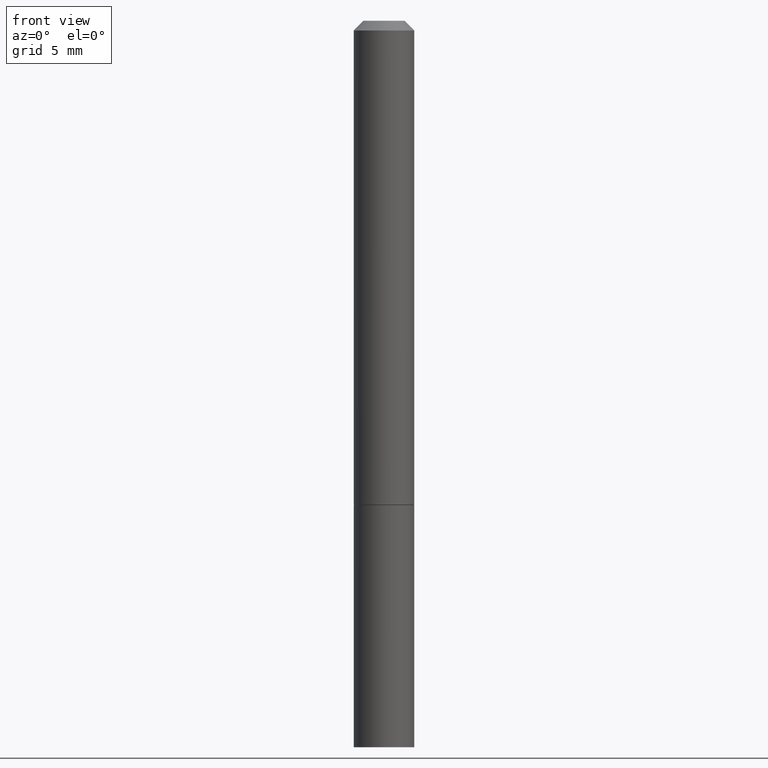
[diagram: clean part render]
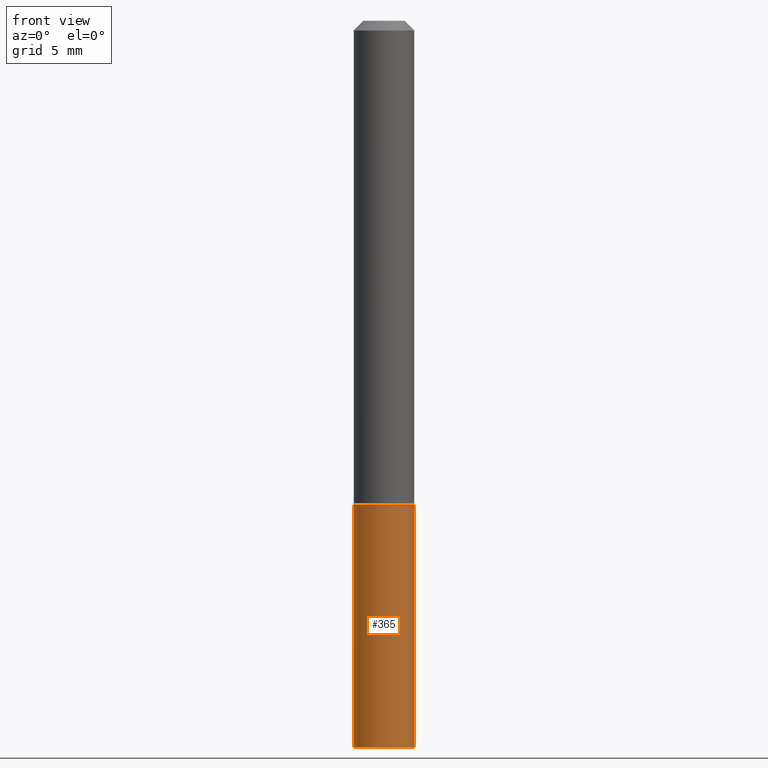
[diagram: same view with one face highlighted and labeled with its STEP entity id]
A machine part, front view. The second image highlights one B-rep face of the part: STEP entity #365.
In plain terms, the highlighted cylindrical surface (edge-blend (fillet) strip) has radius 1.5875 mm, axis along (-0, 0, 1).
Its self-contained STEP definition (entity closure, byte-faithful):
#9 = EDGE_CURVE ( 'NONE', #36, #324, #16, .T. ) ;
#13 = CARTESIAN_POINT ( 'NONE',  ( 0.06250000000000000000, -4.364351673553916694E-16, 3.047610484872459871E-30 ) ) ;
#16 = LINE ( 'NONE', #13, #184 ) ;
#17 = CARTESIAN_POINT ( 'NONE',  ( -0.06250000000000000000, -3.920262463703869855E-15, -1.000000000000000222 ) ) ;
#26 = CYLINDRICAL_SURFACE ( 'NONE', #161, 0.06250000000000000000 ) ;
#36 = VERTEX_POINT ( 'NONE', #112 ) ;
#45 = ORIENTED_EDGE ( 'NONE', *, *, #131, .F. ) ;
#46 = LINE ( 'NONE', #111, #212 ) ;
#47 = ORIENTED_EDGE ( 'NONE', *, *, #9, .T. ) ;
#69 = ORIENTED_EDGE ( 'NONE', *, *, #118, .T. ) ;
#86 = EDGE_CURVE ( 'NONE', #226, #324, #288, .T. ) ;
#107 = DIRECTION ( 'NONE',  ( 1.000000000000000000, -6.982962677686262766E-15, 0.000000000000000000 ) ) ;
#108 = EDGE_LOOP ( 'NONE', ( #45, #69, #47, #343 ) ) ;
#111 = CARTESIAN_POINT ( 'NONE',  ( -0.06250000000000000000, 4.440892098500626162E-16, -3.074334431409316114E-30 ) ) ;
#112 = CARTESIAN_POINT ( 'NONE',  ( 0.06249999999999989592, -5.666003133125438899E-15, -1.500000000000000222 ) ) ;
#116 = CARTESIAN_POINT ( 'NONE',  ( 0.06250000000000000000, -3.927916506198537646E-15, -1.000000000000000222 ) ) ;
#118 = EDGE_CURVE ( 'NONE', #315, #36, #327, .T. ) ;
#121 = DIRECTION ( 'NONE',  ( -2.445468806185136597E-29, 3.491481338843145583E-15, 1.000000000000000000 ) ) ;
#131 = EDGE_CURVE ( 'NONE', #315, #226, #46, .T. ) ;
#136 = AXIS2_PLACEMENT_3D ( 'NONE', #166, #139, #107 ) ;
#139 = DIRECTION ( 'NONE',  ( -2.445468806185136597E-29, 3.491481338843145583E-15, 1.000000000000000000 ) ) ;
#141 = CARTESIAN_POINT ( 'NONE',  ( 0.000000000000000000, 0.000000000000000000, 0.000000000000000000 ) ) ;
#161 = AXIS2_PLACEMENT_3D ( 'NONE', #141, #121, #382 ) ;
#166 = CARTESIAN_POINT ( 'NONE',  ( 3.668203209277704895E-29, -5.237222008264718177E-15, -1.500000000000000222 ) ) ;
#184 = VECTOR ( 'NONE', #284, 39.37007874015748143 ) ;
#208 = DIRECTION ( 'NONE',  ( -2.445468806185136597E-29, 3.491481338843145583E-15, 1.000000000000000000 ) ) ;
#212 = VECTOR ( 'NONE', #256, 39.37007874015748143 ) ;
#226 = VERTEX_POINT ( 'NONE', #17 ) ;
#230 = AXIS2_PLACEMENT_3D ( 'NONE', #377, #208, #352 ) ;
#256 = DIRECTION ( 'NONE',  ( -2.445468806185136877E-29, 3.491481338843145188E-15, 1.000000000000000000 ) ) ;
#284 = DIRECTION ( 'NONE',  ( -2.445468806185136877E-29, 3.491481338843145188E-15, 1.000000000000000000 ) ) ;
#288 = CIRCLE ( 'NONE', #230, 0.06250000000000000000 ) ;
#295 = FACE_OUTER_BOUND ( 'NONE', #108, .T. ) ;
#315 = VERTEX_POINT ( 'NONE', #360 ) ;
#324 = VERTEX_POINT ( 'NONE', #116 ) ;
#327 = CIRCLE ( 'NONE', #136, 0.06250000000000000000 ) ;
#343 = ORIENTED_EDGE ( 'NONE', *, *, #86, .F. ) ;
#352 = DIRECTION ( 'NONE',  ( 1.000000000000000000, -6.982962677686262766E-15, 0.000000000000000000 ) ) ;
#360 = CARTESIAN_POINT ( 'NONE',  ( -0.06249999999999989592, -4.800786840909328085E-15, -1.500000000000000222 ) ) ;
#365 = ADVANCED_FACE ( 'NONE', ( #295 ), #26, .T. ) ;
#377 = CARTESIAN_POINT ( 'NONE',  ( 2.445468806185136877E-29, -3.491481338843145977E-15, -1.000000000000000222 ) ) ;
#382 = DIRECTION ( 'NONE',  ( 1.000000000000000000, -6.982962677686266711E-15, 4.876176775795935793E-29 ) ) ;